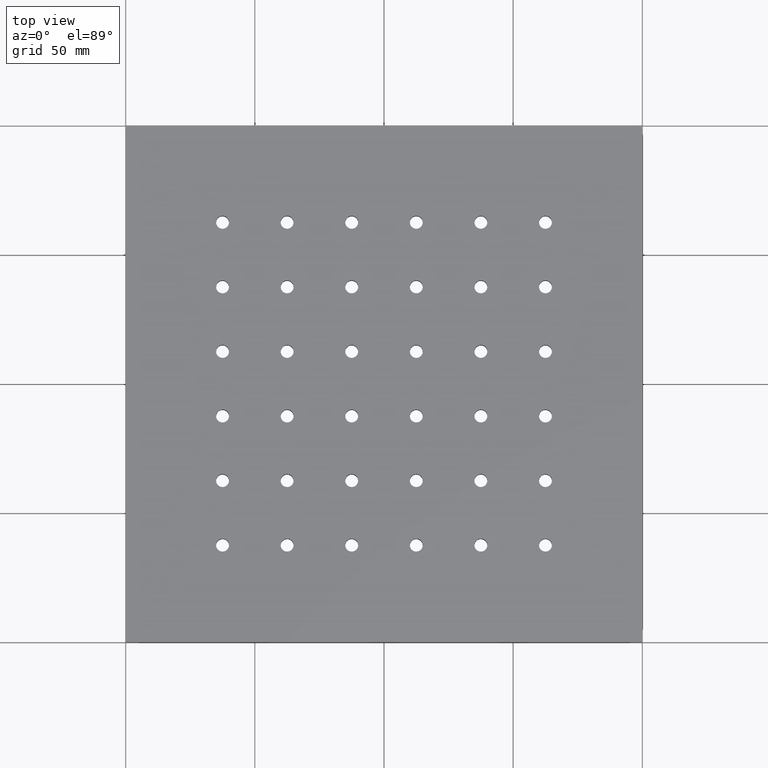
[diagram: clean part render]
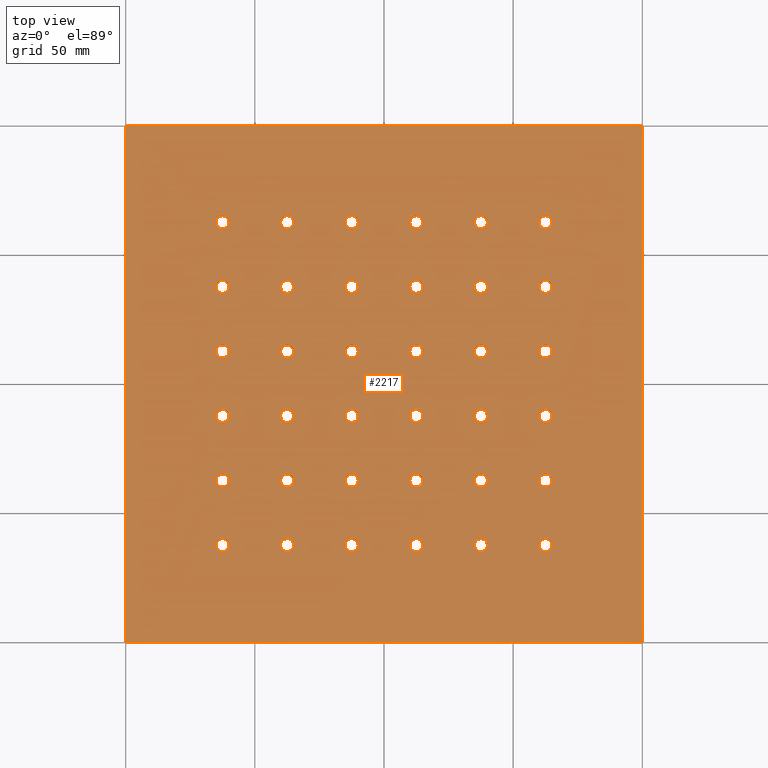
[diagram: same view with one face highlighted and labeled with its STEP entity id]
A machine part, top view. The second image highlights one B-rep face of the part: STEP entity #2217.
In plain terms, the highlighted planar face has unit normal (-0, 0, 1).
Its self-contained STEP definition (entity closure, byte-faithful):
#12 = DIRECTION ( 'NONE',  ( -0.0000000000000000000, -0.0000000000000000000, 1.000000000000000000 ) ) ;
#13 = AXIS2_PLACEMENT_3D ( 'NONE', #20, #1563, #229 ) ;
#14 = CIRCLE ( 'NONE', #1983, 2.500000000000002200 ) ;
#16 = CARTESIAN_POINT ( 'NONE',  ( -65.00000000000008500, 62.50000000000002800, 13.00000000000000000 ) ) ;
#20 = CARTESIAN_POINT ( 'NONE',  ( -12.50000000000008000, -62.49999999999997900, 13.00000000000000000 ) ) ;
#24 = EDGE_CURVE ( 'NONE', #302, #884, #1964, .T. ) ;
#36 = CARTESIAN_POINT ( 'NONE',  ( -65.00000000000008500, 12.50000000000003200, 13.00000000000000000 ) ) ;
#38 = EDGE_CURVE ( 'NONE', #500, #1203, #139, .T. ) ;
#40 = AXIS2_PLACEMENT_3D ( 'NONE', #853, #2189, #1091 ) ;
#43 = CIRCLE ( 'NONE', #1096, 2.500000000000002200 ) ;
#46 = EDGE_LOOP ( 'NONE', ( #1068, #860 ) ) ;
#50 = FACE_BOUND ( 'NONE', #2024, .T. ) ;
#52 = CARTESIAN_POINT ( 'NONE',  ( 9.999999999999925400, 62.50000000000002800, 13.00000000000000000 ) ) ;
#54 = VERTEX_POINT ( 'NONE', #292 ) ;
#57 = CIRCLE ( 'NONE', #2727, 2.500000000000002200 ) ;
#63 = CARTESIAN_POINT ( 'NONE',  ( 12.49999999999992700, -37.49999999999997900, 13.00000000000000000 ) ) ;
#66 = DIRECTION ( 'NONE',  ( 1.000000000000000000, 0.0000000000000000000, 0.0000000000000000000 ) ) ;
#70 = ORIENTED_EDGE ( 'NONE', *, *, #2866, .F. ) ;
#73 = EDGE_CURVE ( 'NONE', #342, #893, #1050, .T. ) ;
#74 = VERTEX_POINT ( 'NONE', #2214 ) ;
#77 = DIRECTION ( 'NONE',  ( -0.0000000000000000000, -0.0000000000000000000, 1.000000000000000000 ) ) ;
#80 = CIRCLE ( 'NONE', #1940, 2.500000000000002200 ) ;
#88 = DIRECTION ( 'NONE',  ( 1.000000000000000000, 0.0000000000000000000, 0.0000000000000000000 ) ) ;
#91 = EDGE_CURVE ( 'NONE', #2169, #773, #1639, .T. ) ;
#92 = AXIS2_PLACEMENT_3D ( 'NONE', #1380, #1619, #645 ) ;
#95 = CARTESIAN_POINT ( 'NONE',  ( -62.50000000000008500, -12.49999999999997700, 13.00000000000000000 ) ) ;
#96 = CARTESIAN_POINT ( 'NONE',  ( 12.49999999999992700, -12.49999999999997700, 13.00000000000000000 ) ) ;
#99 = CARTESIAN_POINT ( 'NONE',  ( 12.49999999999992700, 62.50000000000002800, 13.00000000000000000 ) ) ;
#105 = DIRECTION ( 'NONE',  ( -0.0000000000000000000, -0.0000000000000000000, 1.000000000000000000 ) ) ;
#108 = ORIENTED_EDGE ( 'NONE', *, *, #1057, .F. ) ;
#109 = AXIS2_PLACEMENT_3D ( 'NONE', #1440, #113, #1658 ) ;
#113 = DIRECTION ( 'NONE',  ( -0.0000000000000000000, -0.0000000000000000000, 1.000000000000000000 ) ) ;
#114 = FACE_BOUND ( 'NONE', #46, .T. ) ;
#115 = DIRECTION ( 'NONE',  ( -0.0000000000000000000, -0.0000000000000000000, 1.000000000000000000 ) ) ;
#119 = AXIS2_PLACEMENT_3D ( 'NONE', #227, #890, #2447 ) ;
#121 = CIRCLE ( 'NONE', #13, 2.500000000000002200 ) ;
#124 = ORIENTED_EDGE ( 'NONE', *, *, #225, .F. ) ;
#125 = EDGE_CURVE ( 'NONE', #74, #2723, #1573, .T. ) ;
#130 = DIRECTION ( 'NONE',  ( -0.0000000000000000000, -0.0000000000000000000, 1.000000000000000000 ) ) ;
#132 = EDGE_CURVE ( 'NONE', #1247, #1588, #1503, .T. ) ;
#134 = CIRCLE ( 'NONE', #2822, 2.500000000000002200 ) ;
#139 = CIRCLE ( 'NONE', #232, 2.500000000000002200 ) ;
#141 = VERTEX_POINT ( 'NONE', #1751 ) ;
#147 = DIRECTION ( 'NONE',  ( -0.0000000000000000000, -0.0000000000000000000, 1.000000000000000000 ) ) ;
#148 = DIRECTION ( 'NONE',  ( -0.0000000000000000000, -0.0000000000000000000, 1.000000000000000000 ) ) ;
#149 = CARTESIAN_POINT ( 'NONE',  ( -35.00000000000007800, -37.49999999999997900, 13.00000000000000000 ) ) ;
#154 = VERTEX_POINT ( 'NONE', #2410 ) ;
#156 = CIRCLE ( 'NONE', #1105, 2.500000000000002200 ) ;
#160 = CARTESIAN_POINT ( 'NONE',  ( 62.49999999999991500, 12.50000000000003200, 13.00000000000000000 ) ) ;
#165 = VERTEX_POINT ( 'NONE', #411 ) ;
#169 = CIRCLE ( 'NONE', #2622, 2.500000000000002200 ) ;
#174 = VERTEX_POINT ( 'NONE', #1724 ) ;
#183 = EDGE_CURVE ( 'NONE', #2425, #2183, #2536, .T. ) ;
#184 = AXIS2_PLACEMENT_3D ( 'NONE', #192, #1080, #1744 ) ;
#186 = CARTESIAN_POINT ( 'NONE',  ( -12.50000000000008000, -12.49999999999997700, 13.00000000000000000 ) ) ;
#190 = DIRECTION ( 'NONE',  ( -0.0000000000000000000, -0.0000000000000000000, 1.000000000000000000 ) ) ;
#191 = ORIENTED_EDGE ( 'NONE', *, *, #2428, .F. ) ;
#192 = CARTESIAN_POINT ( 'NONE',  ( 62.49999999999991500, -12.49999999999997700, 13.00000000000000000 ) ) ;
#193 = DIRECTION ( 'NONE',  ( 1.000000000000000000, 0.0000000000000000000, 0.0000000000000000000 ) ) ;
#199 = EDGE_CURVE ( 'NONE', #2723, #74, #1937, .T. ) ;
#200 = DIRECTION ( 'NONE',  ( 1.000000000000000000, 0.0000000000000000000, 0.0000000000000000000 ) ) ;
#205 = CARTESIAN_POINT ( 'NONE',  ( -12.50000000000008000, 12.50000000000003200, 13.00000000000000000 ) ) ;
#210 = CARTESIAN_POINT ( 'NONE',  ( -100.0000000000000000, 99.99999999999997200, 13.00000000000000000 ) ) ;
#213 = CIRCLE ( 'NONE', #2547, 2.500000000000002200 ) ;
#217 = DIRECTION ( 'NONE',  ( 1.000000000000000000, 0.0000000000000000000, 0.0000000000000000000 ) ) ;
#218 = EDGE_CURVE ( 'NONE', #2625, #2179, #2473, .T. ) ;
#220 = EDGE_LOOP ( 'NONE', ( #191, #2212 ) ) ;
#222 = CARTESIAN_POINT ( 'NONE',  ( 37.49999999999992900, 37.50000000000003600, 13.00000000000000000 ) ) ;
#225 = EDGE_CURVE ( 'NONE', #1042, #667, #1368, .T. ) ;
#227 = CARTESIAN_POINT ( 'NONE',  ( 0.0000000000000000000, 0.0000000000000000000, 13.00000000000000000 ) ) ;
#229 = DIRECTION ( 'NONE',  ( 1.000000000000000000, 0.0000000000000000000, 0.0000000000000000000 ) ) ;
#230 = VERTEX_POINT ( 'NONE', #2634 ) ;
#231 = EDGE_CURVE ( 'NONE', #1203, #500, #1435, .T. ) ;
#232 = AXIS2_PLACEMENT_3D ( 'NONE', #957, #2292, #738 ) ;
#233 = DIRECTION ( 'NONE',  ( -2.775557561562891400E-016, 1.000000000000000000, -0.0000000000000000000 ) ) ;
#235 = EDGE_LOOP ( 'NONE', ( #294, #2194 ) ) ;
#243 = VERTEX_POINT ( 'NONE', #654 ) ;
#248 = VECTOR ( 'NONE', #652, 1000.000000000000000 ) ;
#266 = DIRECTION ( 'NONE',  ( -0.0000000000000000000, -0.0000000000000000000, 1.000000000000000000 ) ) ;
#269 = EDGE_CURVE ( 'NONE', #2179, #2625, #1160, .T. ) ;
#270 = AXIS2_PLACEMENT_3D ( 'NONE', #205, #1311, #2859 ) ;
#271 = DIRECTION ( 'NONE',  ( -0.0000000000000000000, -0.0000000000000000000, 1.000000000000000000 ) ) ;
#278 = DIRECTION ( 'NONE',  ( 1.000000000000000000, 0.0000000000000000000, 0.0000000000000000000 ) ) ;
#280 = FACE_BOUND ( 'NONE', #1955, .T. ) ;
#281 = EDGE_CURVE ( 'NONE', #2461, #2593, #1741, .T. ) ;
#283 = CARTESIAN_POINT ( 'NONE',  ( 9.999999999999925400, -62.49999999999997900, 13.00000000000000000 ) ) ;
#286 = ORIENTED_EDGE ( 'NONE', *, *, #1240, .F. ) ;
#292 = CARTESIAN_POINT ( 'NONE',  ( -60.00000000000007800, 37.50000000000003600, 13.00000000000000000 ) ) ;
#294 = ORIENTED_EDGE ( 'NONE', *, *, #815, .F. ) ;
#295 = EDGE_CURVE ( 'NONE', #313, #2837, #2190, .T. ) ;
#296 = AXIS2_PLACEMENT_3D ( 'NONE', #2007, #684, #2235 ) ;
#300 = AXIS2_PLACEMENT_3D ( 'NONE', #1112, #12, #1335 ) ;
#302 = VERTEX_POINT ( 'NONE', #52 ) ;
#309 = DIRECTION ( 'NONE',  ( 1.000000000000000000, 0.0000000000000000000, 0.0000000000000000000 ) ) ;
#311 = DIRECTION ( 'NONE',  ( -0.0000000000000000000, -0.0000000000000000000, 1.000000000000000000 ) ) ;
#312 = ORIENTED_EDGE ( 'NONE', *, *, #2821, .F. ) ;
#313 = VERTEX_POINT ( 'NONE', #363 ) ;
#317 = DIRECTION ( 'NONE',  ( 1.000000000000000000, 0.0000000000000000000, 0.0000000000000000000 ) ) ;
#333 = CARTESIAN_POINT ( 'NONE',  ( -37.50000000000008500, -62.49999999999997900, 13.00000000000000000 ) ) ;
#341 = CARTESIAN_POINT ( 'NONE',  ( -65.00000000000008500, 37.50000000000003600, 13.00000000000000000 ) ) ;
#342 = VERTEX_POINT ( 'NONE', #1906 ) ;
#344 = CIRCLE ( 'NONE', #397, 2.500000000000002200 ) ;
#347 = FACE_BOUND ( 'NONE', #399, .T. ) ;
#349 = CARTESIAN_POINT ( 'NONE',  ( -10.00000000000007800, 62.50000000000002800, 13.00000000000000000 ) ) ;
#356 = EDGE_LOOP ( 'NONE', ( #447, #312 ) ) ;
#363 = CARTESIAN_POINT ( 'NONE',  ( 14.99999999999993100, 12.50000000000003200, 13.00000000000000000 ) ) ;
#367 = ORIENTED_EDGE ( 'NONE', *, *, #2109, .F. ) ;
#369 = DIRECTION ( 'NONE',  ( 1.000000000000000000, 0.0000000000000000000, 0.0000000000000000000 ) ) ;
#370 = AXIS2_PLACEMENT_3D ( 'NONE', #425, #1387, #2255 ) ;
#372 = CIRCLE ( 'NONE', #2486, 2.500000000000002200 ) ;
#378 = VERTEX_POINT ( 'NONE', #2114 ) ;
#382 = VECTOR ( 'NONE', #2435, 1000.000000000000000 ) ;
#383 = CIRCLE ( 'NONE', #1511, 2.500000000000002200 ) ;
#389 = EDGE_LOOP ( 'NONE', ( #108, #2655 ) ) ;
#390 = CARTESIAN_POINT ( 'NONE',  ( 39.99999999999992900, 12.50000000000003200, 13.00000000000000000 ) ) ;
#395 = CARTESIAN_POINT ( 'NONE',  ( 37.49999999999992200, -62.49999999999997900, 13.00000000000000000 ) ) ;
#397 = AXIS2_PLACEMENT_3D ( 'NONE', #1476, #147, #1692 ) ;
#398 = EDGE_CURVE ( 'NONE', #787, #1891, #1399, .T. ) ;
#399 = EDGE_LOOP ( 'NONE', ( #124, #367 ) ) ;
#405 = CIRCLE ( 'NONE', #2003, 2.500000000000002200 ) ;
#408 = CIRCLE ( 'NONE', #2272, 2.500000000000002200 ) ;
#411 = CARTESIAN_POINT ( 'NONE',  ( -35.00000000000007800, -62.49999999999997900, 13.00000000000000000 ) ) ;
#412 = CARTESIAN_POINT ( 'NONE',  ( 62.49999999999991500, -62.49999999999997900, 13.00000000000000000 ) ) ;
#415 = CARTESIAN_POINT ( 'NONE',  ( -62.50000000000008500, 12.50000000000003200, 13.00000000000000000 ) ) ;
#416 = CIRCLE ( 'NONE', #1152, 2.500000000000002200 ) ;
#418 = FACE_BOUND ( 'NONE', #492, .T. ) ;
#420 = EDGE_CURVE ( 'NONE', #2500, #1770, #2565, .T. ) ;
#423 = CIRCLE ( 'NONE', #2306, 2.500000000000002200 ) ;
#425 = CARTESIAN_POINT ( 'NONE',  ( -37.50000000000008500, 62.50000000000002800, 13.00000000000000000 ) ) ;
#426 = VERTEX_POINT ( 'NONE', #2134 ) ;
#431 = EDGE_CURVE ( 'NONE', #1079, #2541, #1535, .T. ) ;
#436 = EDGE_CURVE ( 'NONE', #2740, #2033, #727, .T. ) ;
#438 = CARTESIAN_POINT ( 'NONE',  ( -37.50000000000008500, -12.49999999999997700, 13.00000000000000000 ) ) ;
#440 = EDGE_CURVE ( 'NONE', #809, #2151, #213, .T. ) ;
#442 = DIRECTION ( 'NONE',  ( 1.000000000000000000, 0.0000000000000000000, 0.0000000000000000000 ) ) ;
#445 = CARTESIAN_POINT ( 'NONE',  ( -12.50000000000008000, 37.50000000000003600, 13.00000000000000000 ) ) ;
#447 = ORIENTED_EDGE ( 'NONE', *, *, #858, .F. ) ;
#450 = CIRCLE ( 'NONE', #1591, 2.500000000000002200 ) ;
#452 = EDGE_CURVE ( 'NONE', #2529, #912, #1837, .T. ) ;
#456 = CARTESIAN_POINT ( 'NONE',  ( 14.99999999999993100, 37.50000000000003600, 13.00000000000000000 ) ) ;
#463 = CIRCLE ( 'NONE', #2254, 2.500000000000002200 ) ;
#465 = DIRECTION ( 'NONE',  ( -0.0000000000000000000, -0.0000000000000000000, 1.000000000000000000 ) ) ;
#471 = ORIENTED_EDGE ( 'NONE', *, *, #2758, .F. ) ;
#480 = CARTESIAN_POINT ( 'NONE',  ( -40.00000000000008500, 62.50000000000002800, 13.00000000000000000 ) ) ;
#483 = AXIS2_PLACEMENT_3D ( 'NONE', #2143, #836, #217 ) ;
#484 = ORIENTED_EDGE ( 'NONE', *, *, #440, .F. ) ;
#491 = EDGE_CURVE ( 'NONE', #1691, #2710, #592, .T. ) ;
#492 = EDGE_LOOP ( 'NONE', ( #2369, #618 ) ) ;
#496 = FACE_BOUND ( 'NONE', #1575, .T. ) ;
#500 = VERTEX_POINT ( 'NONE', #1086 ) ;
#501 = VERTEX_POINT ( 'NONE', #2181 ) ;
#509 = ORIENTED_EDGE ( 'NONE', *, *, #2751, .F. ) ;
#512 = EDGE_CURVE ( 'NONE', #893, #342, #14, .T. ) ;
#525 = CARTESIAN_POINT ( 'NONE',  ( 34.99999999999992900, 37.50000000000003600, 13.00000000000000000 ) ) ;
#536 = CARTESIAN_POINT ( 'NONE',  ( 9.999999999999925400, -37.49999999999997900, 13.00000000000000000 ) ) ;
#537 = ORIENTED_EDGE ( 'NONE', *, *, #2378, .F. ) ;
#540 = EDGE_CURVE ( 'NONE', #1210, #1351, #1047, .T. ) ;
#541 = AXIS2_PLACEMENT_3D ( 'NONE', #2165, #837, #2392 ) ;
#547 = AXIS2_PLACEMENT_3D ( 'NONE', #1008, #2550, #1233 ) ;
#551 = EDGE_LOOP ( 'NONE', ( #1009, #980 ) ) ;
#553 = ORIENTED_EDGE ( 'NONE', *, *, #609, .F. ) ;
#554 = EDGE_CURVE ( 'NONE', #243, #1294, #2148, .T. ) ;
#560 = FACE_BOUND ( 'NONE', #1829, .T. ) ;
#561 = DIRECTION ( 'NONE',  ( 1.000000000000000000, 0.0000000000000000000, 0.0000000000000000000 ) ) ;
#572 = CARTESIAN_POINT ( 'NONE',  ( 59.99999999999991500, 37.50000000000003600, 13.00000000000000000 ) ) ;
#574 = VERTEX_POINT ( 'NONE', #2649 ) ;
#582 = EDGE_CURVE ( 'NONE', #1820, #2833, #904, .T. ) ;
#587 = ORIENTED_EDGE ( 'NONE', *, *, #218, .F. ) ;
#592 = CIRCLE ( 'NONE', #2290, 2.500000000000002200 ) ;
#594 = DIRECTION ( 'NONE',  ( 1.000000000000000000, 0.0000000000000000000, 0.0000000000000000000 ) ) ;
#605 = CARTESIAN_POINT ( 'NONE',  ( 37.49999999999992900, -37.49999999999997900, 13.00000000000000000 ) ) ;
#608 = DIRECTION ( 'NONE',  ( 1.000000000000000000, 0.0000000000000000000, 0.0000000000000000000 ) ) ;
#609 = EDGE_CURVE ( 'NONE', #154, #1184, #2601, .T. ) ;
#613 = CARTESIAN_POINT ( 'NONE',  ( -40.00000000000008500, 12.50000000000003200, 13.00000000000000000 ) ) ;
#617 = CARTESIAN_POINT ( 'NONE',  ( -62.50000000000008500, -12.49999999999997700, 13.00000000000000000 ) ) ;
#618 = ORIENTED_EDGE ( 'NONE', *, *, #1712, .F. ) ;
#619 = DIRECTION ( 'NONE',  ( -0.0000000000000000000, -0.0000000000000000000, 1.000000000000000000 ) ) ;
#620 = EDGE_CURVE ( 'NONE', #1813, #2206, #2005, .T. ) ;
#621 = AXIS2_PLACEMENT_3D ( 'NONE', #1101, #2242, #1600 ) ;
#625 = FACE_BOUND ( 'NONE', #1107, .T. ) ;
#632 = EDGE_CURVE ( 'NONE', #2837, #313, #1432, .T. ) ;
#635 = CIRCLE ( 'NONE', #296, 2.500000000000002200 ) ;
#637 = ORIENTED_EDGE ( 'NONE', *, *, #269, .F. ) ;
#638 = DIRECTION ( 'NONE',  ( 1.000000000000000000, 0.0000000000000000000, 0.0000000000000000000 ) ) ;
#640 = DIRECTION ( 'NONE',  ( -0.0000000000000000000, -0.0000000000000000000, 1.000000000000000000 ) ) ;
#645 = DIRECTION ( 'NONE',  ( 1.000000000000000000, 0.0000000000000000000, 0.0000000000000000000 ) ) ;
#649 = AXIS2_PLACEMENT_3D ( 'NONE', #160, #1707, #369 ) ;
#652 = DIRECTION ( 'NONE',  ( -1.000000000000000000, -0.0000000000000000000, -0.0000000000000000000 ) ) ;
#654 = CARTESIAN_POINT ( 'NONE',  ( -100.0000000000000000, 99.99999999999997200, 13.00000000000000000 ) ) ;
#662 = EDGE_CURVE ( 'NONE', #1978, #1018, #1934, .T. ) ;
#667 = VERTEX_POINT ( 'NONE', #283 ) ;
#669 = DIRECTION ( 'NONE',  ( 1.000000000000000000, 0.0000000000000000000, 0.0000000000000000000 ) ) ;
#670 = ORIENTED_EDGE ( 'NONE', *, *, #24, .F. ) ;
#673 = ORIENTED_EDGE ( 'NONE', *, *, #903, .F. ) ;
#684 = DIRECTION ( 'NONE',  ( -0.0000000000000000000, -0.0000000000000000000, 1.000000000000000000 ) ) ;
#702 = DIRECTION ( 'NONE',  ( -0.0000000000000000000, -0.0000000000000000000, 1.000000000000000000 ) ) ;
#707 = CARTESIAN_POINT ( 'NONE',  ( 34.99999999999992200, -62.49999999999997900, 13.00000000000000000 ) ) ;
#711 = DIRECTION ( 'NONE',  ( -0.0000000000000000000, -0.0000000000000000000, 1.000000000000000000 ) ) ;
#714 = VERTEX_POINT ( 'NONE', #1202 ) ;
#716 = CARTESIAN_POINT ( 'NONE',  ( -62.50000000000008500, 62.50000000000002800, 13.00000000000000000 ) ) ;
#717 = ORIENTED_EDGE ( 'NONE', *, *, #281, .F. ) ;
#720 = DIRECTION ( 'NONE',  ( -0.0000000000000000000, -0.0000000000000000000, 1.000000000000000000 ) ) ;
#721 = ORIENTED_EDGE ( 'NONE', *, *, #491, .F. ) ;
#727 = CIRCLE ( 'NONE', #2706, 2.500000000000002200 ) ;
#730 = EDGE_CURVE ( 'NONE', #501, #880, #2324, .T. ) ;
#736 = ORIENTED_EDGE ( 'NONE', *, *, #1087, .F. ) ;
#737 = CIRCLE ( 'NONE', #649, 2.500000000000002200 ) ;
#738 = DIRECTION ( 'NONE',  ( 1.000000000000000000, 0.0000000000000000000, 0.0000000000000000000 ) ) ;
#743 = AXIS2_PLACEMENT_3D ( 'NONE', #1608, #271, #1818 ) ;
#744 = EDGE_LOOP ( 'NONE', ( #1055, #1077 ) ) ;
#746 = CARTESIAN_POINT ( 'NONE',  ( -60.00000000000007800, 12.50000000000003200, 13.00000000000000000 ) ) ;
#749 = CARTESIAN_POINT ( 'NONE',  ( -12.50000000000008000, 12.50000000000003200, 13.00000000000000000 ) ) ;
#751 = EDGE_LOOP ( 'NONE', ( #509, #1147 ) ) ;
#752 = CARTESIAN_POINT ( 'NONE',  ( -10.00000000000007800, 12.50000000000003200, 13.00000000000000000 ) ) ;
#763 = FACE_BOUND ( 'NONE', #2590, .T. ) ;
#764 = CARTESIAN_POINT ( 'NONE',  ( -60.00000000000007800, -37.49999999999997900, 13.00000000000000000 ) ) ;
#767 = AXIS2_PLACEMENT_3D ( 'NONE', #1004, #2548, #1232 ) ;
#769 = EDGE_CURVE ( 'NONE', #378, #574, #1083, .T. ) ;
#773 = VERTEX_POINT ( 'NONE', #1457 ) ;
#783 = ORIENTED_EDGE ( 'NONE', *, *, #913, .F. ) ;
#786 = CIRCLE ( 'NONE', #2070, 2.500000000000002200 ) ;
#787 = VERTEX_POINT ( 'NONE', #2779 ) ;
#794 = FACE_BOUND ( 'NONE', #551, .T. ) ;
#799 = CARTESIAN_POINT ( 'NONE',  ( 62.49999999999991500, 37.50000000000003600, 13.00000000000000000 ) ) ;
#804 = ORIENTED_EDGE ( 'NONE', *, *, #769, .F. ) ;
#806 = DIRECTION ( 'NONE',  ( -0.0000000000000000000, -0.0000000000000000000, 1.000000000000000000 ) ) ;
#807 = CARTESIAN_POINT ( 'NONE',  ( 37.49999999999992900, -12.49999999999997700, 13.00000000000000000 ) ) ;
#808 = EDGE_CURVE ( 'NONE', #1945, #1128, #416, .T. ) ;
#809 = VERTEX_POINT ( 'NONE', #1683 ) ;
#815 = EDGE_CURVE ( 'NONE', #165, #141, #344, .T. ) ;
#820 = ORIENTED_EDGE ( 'NONE', *, *, #452, .F. ) ;
#821 = DIRECTION ( 'NONE',  ( 1.000000000000000000, 0.0000000000000000000, 0.0000000000000000000 ) ) ;
#831 = CARTESIAN_POINT ( 'NONE',  ( 62.49999999999991500, -37.49999999999997900, 13.00000000000000000 ) ) ;
#836 = DIRECTION ( 'NONE',  ( -0.0000000000000000000, -0.0000000000000000000, 1.000000000000000000 ) ) ;
#837 = DIRECTION ( 'NONE',  ( -0.0000000000000000000, -0.0000000000000000000, 1.000000000000000000 ) ) ;
#839 = DIRECTION ( 'NONE',  ( 1.000000000000000000, 0.0000000000000000000, 0.0000000000000000000 ) ) ;
#844 = EDGE_CURVE ( 'NONE', #1588, #1247, #1462, .T. ) ;
#850 = ORIENTED_EDGE ( 'NONE', *, *, #1135, .F. ) ;
#853 = CARTESIAN_POINT ( 'NONE',  ( 12.49999999999992700, -62.49999999999997900, 13.00000000000000000 ) ) ;
#858 = EDGE_CURVE ( 'NONE', #54, #1928, #450, .T. ) ;
#860 = ORIENTED_EDGE ( 'NONE', *, *, #431, .F. ) ;
#863 = EDGE_LOOP ( 'NONE', ( #916, #70 ) ) ;
#864 = FACE_BOUND ( 'NONE', #2580, .T. ) ;
#867 = CARTESIAN_POINT ( 'NONE',  ( -37.50000000000008500, 12.50000000000003200, 13.00000000000000000 ) ) ;
#869 = ORIENTED_EDGE ( 'NONE', *, *, #2800, .F. ) ;
#880 = VERTEX_POINT ( 'NONE', #1927 ) ;
#884 = VERTEX_POINT ( 'NONE', #1679 ) ;
#886 = AXIS2_PLACEMENT_3D ( 'NONE', #2257, #928, #2485 ) ;
#890 = DIRECTION ( 'NONE',  ( -0.0000000000000000000, 0.0000000000000000000, 1.000000000000000000 ) ) ;
#893 = VERTEX_POINT ( 'NONE', #2060 ) ;
#897 = AXIS2_PLACEMENT_3D ( 'NONE', #716, #2269, #943 ) ;
#903 = EDGE_CURVE ( 'NONE', #2710, #1691, #1996, .T. ) ;
#904 = CIRCLE ( 'NONE', #300, 2.500000000000002200 ) ;
#912 = VERTEX_POINT ( 'NONE', #752 ) ;
#913 = EDGE_CURVE ( 'NONE', #1018, #1978, #372, .T. ) ;
#915 = CARTESIAN_POINT ( 'NONE',  ( 37.49999999999992900, 12.50000000000003200, 13.00000000000000000 ) ) ;
#916 = ORIENTED_EDGE ( 'NONE', *, *, #420, .F. ) ;
#917 = AXIS2_PLACEMENT_3D ( 'NONE', #333, #1884, #561 ) ;
#918 = CARTESIAN_POINT ( 'NONE',  ( 62.49999999999991500, -37.49999999999997900, 13.00000000000000000 ) ) ;
#921 = AXIS2_PLACEMENT_3D ( 'NONE', #831, #619, #608 ) ;
#922 = CARTESIAN_POINT ( 'NONE',  ( -37.50000000000008500, 37.50000000000003600, 13.00000000000000000 ) ) ;
#926 = CARTESIAN_POINT ( 'NONE',  ( 12.49999999999992700, 62.50000000000002800, 13.00000000000000000 ) ) ;
#927 = DIRECTION ( 'NONE',  ( -0.0000000000000000000, -0.0000000000000000000, 1.000000000000000000 ) ) ;
#928 = DIRECTION ( 'NONE',  ( -0.0000000000000000000, -0.0000000000000000000, 1.000000000000000000 ) ) ;
#931 = CIRCLE ( 'NONE', #1822, 2.500000000000002200 ) ;
#935 = DIRECTION ( 'NONE',  ( 1.000000000000000000, 0.0000000000000000000, 0.0000000000000000000 ) ) ;
#939 = CARTESIAN_POINT ( 'NONE',  ( -62.50000000000008500, 62.50000000000002800, 13.00000000000000000 ) ) ;
#941 = FACE_BOUND ( 'NONE', #1869, .T. ) ;
#943 = DIRECTION ( 'NONE',  ( 1.000000000000000000, 0.0000000000000000000, 0.0000000000000000000 ) ) ;
#946 = ORIENTED_EDGE ( 'NONE', *, *, #2152, .T. ) ;
#957 = CARTESIAN_POINT ( 'NONE',  ( -12.50000000000008000, -37.49999999999997900, 13.00000000000000000 ) ) ;
#964 = VERTEX_POINT ( 'NONE', #1878 ) ;
#977 = AXIS2_PLACEMENT_3D ( 'NONE', #1373, #1513, #935 ) ;
#978 = DIRECTION ( 'NONE',  ( -0.0000000000000000000, -0.0000000000000000000, 1.000000000000000000 ) ) ;
#980 = ORIENTED_EDGE ( 'NONE', *, *, #1157, .F. ) ;
#981 = DIRECTION ( 'NONE',  ( 1.000000000000000000, 0.0000000000000000000, 0.0000000000000000000 ) ) ;
#1004 = CARTESIAN_POINT ( 'NONE',  ( -37.50000000000008500, 12.50000000000003200, 13.00000000000000000 ) ) ;
#1008 = CARTESIAN_POINT ( 'NONE',  ( 37.49999999999992200, 62.50000000000002800, 13.00000000000000000 ) ) ;
#1009 = ORIENTED_EDGE ( 'NONE', *, *, #91, .F. ) ;
#1010 = FACE_BOUND ( 'NONE', #356, .T. ) ;
#1017 = DIRECTION ( 'NONE',  ( -0.0000000000000000000, -0.0000000000000000000, 1.000000000000000000 ) ) ;
#1018 = VERTEX_POINT ( 'NONE', #349 ) ;
#1025 = DIRECTION ( 'NONE',  ( 1.000000000000000000, 0.0000000000000000000, 0.0000000000000000000 ) ) ;
#1027 = CARTESIAN_POINT ( 'NONE',  ( -15.00000000000008300, 12.50000000000003200, 13.00000000000000000 ) ) ;
#1033 = DIRECTION ( 'NONE',  ( -0.0000000000000000000, -0.0000000000000000000, 1.000000000000000000 ) ) ;
#1041 = ORIENTED_EDGE ( 'NONE', *, *, #582, .F. ) ;
#1042 = VERTEX_POINT ( 'NONE', #2123 ) ;
#1047 = LINE ( 'NONE', #1341, #1569 ) ;
#1050 = CIRCLE ( 'NONE', #92, 2.500000000000002200 ) ;
#1051 = CARTESIAN_POINT ( 'NONE',  ( 64.99999999999991500, -37.49999999999997900, 13.00000000000000000 ) ) ;
#1053 = DIRECTION ( 'NONE',  ( -0.0000000000000000000, -0.0000000000000000000, 1.000000000000000000 ) ) ;
#1054 = AXIS2_PLACEMENT_3D ( 'NONE', #2717, #1395, #66 ) ;
#1055 = ORIENTED_EDGE ( 'NONE', *, *, #2465, .F. ) ;
#1057 = EDGE_CURVE ( 'NONE', #2561, #1762, #43, .T. ) ;
#1058 = CARTESIAN_POINT ( 'NONE',  ( -10.00000000000007800, 37.50000000000003600, 13.00000000000000000 ) ) ;
#1062 = CARTESIAN_POINT ( 'NONE',  ( -37.50000000000008500, 37.50000000000003600, 13.00000000000000000 ) ) ;
#1064 = ORIENTED_EDGE ( 'NONE', *, *, #1384, .F. ) ;
#1065 = CARTESIAN_POINT ( 'NONE',  ( -62.50000000000008500, -37.49999999999997900, 13.00000000000000000 ) ) ;
#1068 = ORIENTED_EDGE ( 'NONE', *, *, #1810, .F. ) ;
#1069 = CARTESIAN_POINT ( 'NONE',  ( 34.99999999999992900, -37.49999999999997900, 13.00000000000000000 ) ) ;
#1077 = ORIENTED_EDGE ( 'NONE', *, *, #808, .F. ) ;
#1079 = VERTEX_POINT ( 'NONE', #2795 ) ;
#1080 = DIRECTION ( 'NONE',  ( -0.0000000000000000000, -0.0000000000000000000, 1.000000000000000000 ) ) ;
#1082 = DIRECTION ( 'NONE',  ( -0.0000000000000000000, -0.0000000000000000000, 1.000000000000000000 ) ) ;
#1083 = CIRCLE ( 'NONE', #547, 2.500000000000002200 ) ;
#1084 = ORIENTED_EDGE ( 'NONE', *, *, #1542, .F. ) ;
#1085 = FACE_BOUND ( 'NONE', #389, .T. ) ;
#1086 = CARTESIAN_POINT ( 'NONE',  ( -15.00000000000008300, -37.49999999999997900, 13.00000000000000000 ) ) ;
#1087 = EDGE_CURVE ( 'NONE', #2183, #2425, #2319, .T. ) ;
#1091 = DIRECTION ( 'NONE',  ( 1.000000000000000000, 0.0000000000000000000, 0.0000000000000000000 ) ) ;
#1095 = ORIENTED_EDGE ( 'NONE', *, *, #73, .F. ) ;
#1096 = AXIS2_PLACEMENT_3D ( 'NONE', #807, #2367, #2582 ) ;
#1099 = EDGE_CURVE ( 'NONE', #1762, #2561, #1730, .T. ) ;
#1101 = CARTESIAN_POINT ( 'NONE',  ( -12.50000000000008000, -37.49999999999997900, 13.00000000000000000 ) ) ;
#1102 = DIRECTION ( 'NONE',  ( 1.000000000000000000, 0.0000000000000000000, 0.0000000000000000000 ) ) ;
#1105 = AXIS2_PLACEMENT_3D ( 'NONE', #1062, #2605, #1276 ) ;
#1107 = EDGE_LOOP ( 'NONE', ( #1494, #2616 ) ) ;
#1108 = CARTESIAN_POINT ( 'NONE',  ( 64.99999999999991500, 62.50000000000002800, 13.00000000000000000 ) ) ;
#1112 = CARTESIAN_POINT ( 'NONE',  ( -62.50000000000008500, 12.50000000000003200, 13.00000000000000000 ) ) ;
#1118 = ORIENTED_EDGE ( 'NONE', *, *, #540, .T. ) ;
#1126 = EDGE_LOOP ( 'NONE', ( #2113, #820 ) ) ;
#1128 = VERTEX_POINT ( 'NONE', #2607 ) ;
#1135 = EDGE_CURVE ( 'NONE', #426, #964, #2177, .T. ) ;
#1139 = CARTESIAN_POINT ( 'NONE',  ( 100.0000000000000600, -100.0000000000000300, 13.00000000000000000 ) ) ;
#1140 = CARTESIAN_POINT ( 'NONE',  ( -62.50000000000008500, 37.50000000000003600, 13.00000000000000000 ) ) ;
#1141 = VERTEX_POINT ( 'NONE', #1069 ) ;
#1142 = DIRECTION ( 'NONE',  ( -0.0000000000000000000, -0.0000000000000000000, 1.000000000000000000 ) ) ;
#1146 = DIRECTION ( 'NONE',  ( 1.000000000000000000, 0.0000000000000000000, 0.0000000000000000000 ) ) ;
#1147 = ORIENTED_EDGE ( 'NONE', *, *, #436, .F. ) ;
#1149 = EDGE_LOOP ( 'NONE', ( #2528, #670 ) ) ;
#1152 = AXIS2_PLACEMENT_3D ( 'NONE', #799, #2348, #1025 ) ;
#1154 = EDGE_LOOP ( 'NONE', ( #1118, #946, #1998, #2274 ) ) ;
#1157 = EDGE_CURVE ( 'NONE', #773, #2169, #931, .T. ) ;
#1159 = FACE_BOUND ( 'NONE', #2100, .T. ) ;
#1160 = CIRCLE ( 'NONE', #483, 2.500000000000002200 ) ;
#1161 = DIRECTION ( 'NONE',  ( 1.000000000000000000, 0.0000000000000000000, 0.0000000000000000000 ) ) ;
#1164 = AXIS2_PLACEMENT_3D ( 'NONE', #95, #1644, #309 ) ;
#1170 = DIRECTION ( 'NONE',  ( 1.000000000000000000, 0.0000000000000000000, 0.0000000000000000000 ) ) ;
#1171 = EDGE_CURVE ( 'NONE', #2833, #1820, #408, .T. ) ;
#1177 = ORIENTED_EDGE ( 'NONE', *, *, #199, .F. ) ;
#1178 = ORIENTED_EDGE ( 'NONE', *, *, #844, .F. ) ;
#1184 = VERTEX_POINT ( 'NONE', #707 ) ;
#1196 = EDGE_CURVE ( 'NONE', #2593, #2461, #2630, .T. ) ;
#1202 = CARTESIAN_POINT ( 'NONE',  ( 9.999999999999925400, 37.50000000000003600, 13.00000000000000000 ) ) ;
#1203 = VERTEX_POINT ( 'NONE', #1773 ) ;
#1210 = VERTEX_POINT ( 'NONE', #1139 ) ;
#1216 = EDGE_LOOP ( 'NONE', ( #1590, #1800 ) ) ;
#1217 = AXIS2_PLACEMENT_3D ( 'NONE', #2338, #1017, #2558 ) ;
#1219 = FACE_BOUND ( 'NONE', #1941, .T. ) ;
#1222 = CARTESIAN_POINT ( 'NONE',  ( -15.00000000000008300, -62.49999999999997900, 13.00000000000000000 ) ) ;
#1232 = DIRECTION ( 'NONE',  ( 1.000000000000000000, 0.0000000000000000000, 0.0000000000000000000 ) ) ;
#1233 = DIRECTION ( 'NONE',  ( 1.000000000000000000, 0.0000000000000000000, 0.0000000000000000000 ) ) ;
#1240 = EDGE_CURVE ( 'NONE', #2569, #2842, #786, .T. ) ;
#1247 = VERTEX_POINT ( 'NONE', #2349 ) ;
#1260 = CARTESIAN_POINT ( 'NONE',  ( -99.99999999999997200, -100.0000000000000300, 13.00000000000000000 ) ) ;
#1263 = DIRECTION ( 'NONE',  ( 1.000000000000000000, 0.0000000000000000000, 0.0000000000000000000 ) ) ;
#1264 = EDGE_CURVE ( 'NONE', #2047, #230, #134, .T. ) ;
#1268 = VERTEX_POINT ( 'NONE', #2004 ) ;
#1276 = DIRECTION ( 'NONE',  ( 1.000000000000000000, 0.0000000000000000000, 0.0000000000000000000 ) ) ;
#1284 = CARTESIAN_POINT ( 'NONE',  ( 12.49999999999992700, -37.49999999999997900, 13.00000000000000000 ) ) ;
#1288 = DIRECTION ( 'NONE',  ( 1.000000000000000000, 0.0000000000000000000, 0.0000000000000000000 ) ) ;
#1294 = VERTEX_POINT ( 'NONE', #1260 ) ;
#1302 = DIRECTION ( 'NONE',  ( 1.000000000000000000, 0.0000000000000000000, 0.0000000000000000000 ) ) ;
#1304 = AXIS2_PLACEMENT_3D ( 'NONE', #749, #2304, #981 ) ;
#1305 = CARTESIAN_POINT ( 'NONE',  ( 59.99999999999991500, 12.50000000000003200, 13.00000000000000000 ) ) ;
#1311 = DIRECTION ( 'NONE',  ( -0.0000000000000000000, -0.0000000000000000000, 1.000000000000000000 ) ) ;
#1315 = EDGE_LOOP ( 'NONE', ( #1487, #1359 ) ) ;
#1327 = CARTESIAN_POINT ( 'NONE',  ( 59.99999999999991500, -12.49999999999997700, 13.00000000000000000 ) ) ;
#1335 = DIRECTION ( 'NONE',  ( 1.000000000000000000, 0.0000000000000000000, 0.0000000000000000000 ) ) ;
#1339 = DIRECTION ( 'NONE',  ( 1.000000000000000000, 0.0000000000000000000, 0.0000000000000000000 ) ) ;
#1341 = CARTESIAN_POINT ( 'NONE',  ( 100.0000000000000000, 99.99999999999997200, 13.00000000000000000 ) ) ;
#1343 = EDGE_CURVE ( 'NONE', #714, #2213, #1690, .T. ) ;
#1345 = ORIENTED_EDGE ( 'NONE', *, *, #1720, .F. ) ;
#1351 = VERTEX_POINT ( 'NONE', #2617 ) ;
#1359 = ORIENTED_EDGE ( 'NONE', *, *, #1921, .F. ) ;
#1364 = DIRECTION ( 'NONE',  ( 1.000000000000000000, 0.0000000000000000000, 0.0000000000000000000 ) ) ;
#1366 = FACE_BOUND ( 'NONE', #863, .T. ) ;
#1368 = CIRCLE ( 'NONE', #40, 2.500000000000002200 ) ;
#1369 = CARTESIAN_POINT ( 'NONE',  ( -12.50000000000008000, 37.50000000000003600, 13.00000000000000000 ) ) ;
#1373 = CARTESIAN_POINT ( 'NONE',  ( 62.49999999999991500, 62.50000000000002800, 13.00000000000000000 ) ) ;
#1380 = CARTESIAN_POINT ( 'NONE',  ( -37.50000000000008500, -12.49999999999997700, 13.00000000000000000 ) ) ;
#1384 = EDGE_CURVE ( 'NONE', #880, #501, #2797, .T. ) ;
#1387 = DIRECTION ( 'NONE',  ( -0.0000000000000000000, -0.0000000000000000000, 1.000000000000000000 ) ) ;
#1391 = AXIS2_PLACEMENT_3D ( 'NONE', #2412, #640, #1302 ) ;
#1393 = ORIENTED_EDGE ( 'NONE', *, *, #183, .F. ) ;
#1395 = DIRECTION ( 'NONE',  ( -0.0000000000000000000, -0.0000000000000000000, 1.000000000000000000 ) ) ;
#1396 = EDGE_CURVE ( 'NONE', #1294, #1210, #2730, .T. ) ;
#1398 = FACE_BOUND ( 'NONE', #744, .T. ) ;
#1399 = CIRCLE ( 'NONE', #2097, 2.500000000000002200 ) ;
#1406 = CARTESIAN_POINT ( 'NONE',  ( -12.50000000000008000, 62.50000000000002800, 13.00000000000000000 ) ) ;
#1421 = DIRECTION ( 'NONE',  ( -0.0000000000000000000, -0.0000000000000000000, 1.000000000000000000 ) ) ;
#1428 = AXIS2_PLACEMENT_3D ( 'NONE', #2474, #2270, #1161 ) ;
#1429 = EDGE_LOOP ( 'NONE', ( #869, #804 ) ) ;
#1431 = CIRCLE ( 'NONE', #2640, 2.500000000000002200 ) ;
#1432 = CIRCLE ( 'NONE', #1054, 2.500000000000002200 ) ;
#1434 = CARTESIAN_POINT ( 'NONE',  ( -12.50000000000008000, 62.50000000000002800, 13.00000000000000000 ) ) ;
#1435 = CIRCLE ( 'NONE', #621, 2.500000000000002200 ) ;
#1439 = AXIS2_PLACEMENT_3D ( 'NONE', #412, #1953, #638 ) ;
#1440 = CARTESIAN_POINT ( 'NONE',  ( 62.49999999999991500, -62.49999999999997900, 13.00000000000000000 ) ) ;
#1441 = CARTESIAN_POINT ( 'NONE',  ( 12.49999999999992700, 37.50000000000003600, 13.00000000000000000 ) ) ;
#1444 = AXIS2_PLACEMENT_3D ( 'NONE', #2363, #1033, #88 ) ;
#1445 = CARTESIAN_POINT ( 'NONE',  ( 39.99999999999992900, -37.49999999999997900, 13.00000000000000000 ) ) ;
#1449 = CARTESIAN_POINT ( 'NONE',  ( 59.99999999999991500, -37.49999999999997900, 13.00000000000000000 ) ) ;
#1457 = CARTESIAN_POINT ( 'NONE',  ( 59.99999999999991500, 62.50000000000002800, 13.00000000000000000 ) ) ;
#1458 = CARTESIAN_POINT ( 'NONE',  ( 62.49999999999991500, 37.50000000000003600, 13.00000000000000000 ) ) ;
#1462 = CIRCLE ( 'NONE', #1444, 2.500000000000002200 ) ;
#1464 = FACE_BOUND ( 'NONE', #1429, .T. ) ;
#1467 = CIRCLE ( 'NONE', #767, 2.500000000000002200 ) ;
#1469 = CARTESIAN_POINT ( 'NONE',  ( -60.00000000000007800, -62.49999999999997900, 13.00000000000000000 ) ) ;
#1476 = CARTESIAN_POINT ( 'NONE',  ( -37.50000000000008500, -62.49999999999997900, 13.00000000000000000 ) ) ;
#1483 = CARTESIAN_POINT ( 'NONE',  ( 39.99999999999992900, -12.49999999999997700, 13.00000000000000000 ) ) ;
#1487 = ORIENTED_EDGE ( 'NONE', *, *, #2546, .F. ) ;
#1494 = ORIENTED_EDGE ( 'NONE', *, *, #231, .F. ) ;
#1497 = CIRCLE ( 'NONE', #1606, 2.500000000000002200 ) ;
#1501 = AXIS2_PLACEMENT_3D ( 'NONE', #1406, #77, #1623 ) ;
#1503 = CIRCLE ( 'NONE', #1721, 2.500000000000002200 ) ;
#1511 = AXIS2_PLACEMENT_3D ( 'NONE', #2853, #1530, #200 ) ;
#1512 = DIRECTION ( 'NONE',  ( 1.000000000000000000, 0.0000000000000000000, 0.0000000000000000000 ) ) ;
#1513 = DIRECTION ( 'NONE',  ( -0.0000000000000000000, -0.0000000000000000000, 1.000000000000000000 ) ) ;
#1530 = DIRECTION ( 'NONE',  ( -0.0000000000000000000, -0.0000000000000000000, 1.000000000000000000 ) ) ;
#1533 = FACE_BOUND ( 'NONE', #2356, .T. ) ;
#1535 = CIRCLE ( 'NONE', #2407, 2.500000000000002200 ) ;
#1537 = CIRCLE ( 'NONE', #1217, 2.500000000000002200 ) ;
#1538 = AXIS2_PLACEMENT_3D ( 'NONE', #2375, #1053, #2592 ) ;
#1542 = EDGE_CURVE ( 'NONE', #1184, #154, #169, .T. ) ;
#1555 = VECTOR ( 'NONE', #193, 1000.000000000000000 ) ;
#1563 = DIRECTION ( 'NONE',  ( -0.0000000000000000000, -0.0000000000000000000, 1.000000000000000000 ) ) ;
#1566 = CIRCLE ( 'NONE', #1304, 2.500000000000002200 ) ;
#1569 = VECTOR ( 'NONE', #233, 1000.000000000000000 ) ;
#1573 = CIRCLE ( 'NONE', #1428, 2.500000000000002200 ) ;
#1575 = EDGE_LOOP ( 'NONE', ( #1743, #2647 ) ) ;
#1577 = EDGE_CURVE ( 'NONE', #2842, #2569, #2386, .T. ) ;
#1579 = DIRECTION ( 'NONE',  ( -0.0000000000000000000, -0.0000000000000000000, 1.000000000000000000 ) ) ;
#1580 = ORIENTED_EDGE ( 'NONE', *, *, #1196, .F. ) ;
#1588 = VERTEX_POINT ( 'NONE', #525 ) ;
#1590 = ORIENTED_EDGE ( 'NONE', *, *, #295, .F. ) ;
#1591 = AXIS2_PLACEMENT_3D ( 'NONE', #2745, #1421, #1645 ) ;
#1596 = EDGE_LOOP ( 'NONE', ( #286, #2827 ) ) ;
#1600 = DIRECTION ( 'NONE',  ( 1.000000000000000000, 0.0000000000000000000, 0.0000000000000000000 ) ) ;
#1605 = FACE_BOUND ( 'NONE', #2521, .T. ) ;
#1606 = AXIS2_PLACEMENT_3D ( 'NONE', #1441, #115, #1659 ) ;
#1608 = CARTESIAN_POINT ( 'NONE',  ( 37.49999999999992200, -62.49999999999997900, 13.00000000000000000 ) ) ;
#1611 = DIRECTION ( 'NONE',  ( 1.000000000000000000, 0.0000000000000000000, 0.0000000000000000000 ) ) ;
#1615 = DIRECTION ( 'NONE',  ( -0.0000000000000000000, -0.0000000000000000000, 1.000000000000000000 ) ) ;
#1617 = EDGE_LOOP ( 'NONE', ( #2515, #1898 ) ) ;
#1619 = DIRECTION ( 'NONE',  ( -0.0000000000000000000, -0.0000000000000000000, 1.000000000000000000 ) ) ;
#1623 = DIRECTION ( 'NONE',  ( 1.000000000000000000, 0.0000000000000000000, 0.0000000000000000000 ) ) ;
#1638 = CARTESIAN_POINT ( 'NONE',  ( 64.99999999999991500, 12.50000000000003200, 13.00000000000000000 ) ) ;
#1639 = CIRCLE ( 'NONE', #977, 2.500000000000002200 ) ;
#1644 = DIRECTION ( 'NONE',  ( -0.0000000000000000000, -0.0000000000000000000, 1.000000000000000000 ) ) ;
#1645 = DIRECTION ( 'NONE',  ( 1.000000000000000000, 0.0000000000000000000, 0.0000000000000000000 ) ) ;
#1649 = DIRECTION ( 'NONE',  ( -0.0000000000000000000, -0.0000000000000000000, 1.000000000000000000 ) ) ;
#1652 = DIRECTION ( 'NONE',  ( 1.000000000000000000, 0.0000000000000000000, 0.0000000000000000000 ) ) ;
#1658 = DIRECTION ( 'NONE',  ( 1.000000000000000000, 0.0000000000000000000, 0.0000000000000000000 ) ) ;
#1659 = DIRECTION ( 'NONE',  ( 1.000000000000000000, 0.0000000000000000000, 0.0000000000000000000 ) ) ;
#1668 = AXIS2_PLACEMENT_3D ( 'NONE', #2678, #1579, #2376 ) ;
#1671 = FACE_BOUND ( 'NONE', #2850, .T. ) ;
#1678 = DIRECTION ( 'NONE',  ( 1.000000000000000000, 0.0000000000000000000, 0.0000000000000000000 ) ) ;
#1679 = CARTESIAN_POINT ( 'NONE',  ( 14.99999999999993100, 62.50000000000002800, 13.00000000000000000 ) ) ;
#1681 = AXIS2_PLACEMENT_3D ( 'NONE', #617, #2167, #839 ) ;
#1683 = CARTESIAN_POINT ( 'NONE',  ( -40.00000000000008500, 37.50000000000003600, 13.00000000000000000 ) ) ;
#1690 = CIRCLE ( 'NONE', #541, 2.500000000000002200 ) ;
#1691 = VERTEX_POINT ( 'NONE', #2023 ) ;
#1692 = DIRECTION ( 'NONE',  ( 1.000000000000000000, 0.0000000000000000000, 0.0000000000000000000 ) ) ;
#1693 = DIRECTION ( 'NONE',  ( 1.000000000000000000, 0.0000000000000000000, 0.0000000000000000000 ) ) ;
#1695 = ORIENTED_EDGE ( 'NONE', *, *, #398, .F. ) ;
#1703 = CIRCLE ( 'NONE', #1807, 2.500000000000002200 ) ;
#1707 = DIRECTION ( 'NONE',  ( -0.0000000000000000000, -0.0000000000000000000, 1.000000000000000000 ) ) ;
#1712 = EDGE_CURVE ( 'NONE', #2206, #1813, #2172, .T. ) ;
#1720 = EDGE_CURVE ( 'NONE', #1821, #1268, #405, .T. ) ;
#1721 = AXIS2_PLACEMENT_3D ( 'NONE', #222, #266, #442 ) ;
#1724 = CARTESIAN_POINT ( 'NONE',  ( -35.00000000000007800, 12.50000000000003200, 13.00000000000000000 ) ) ;
#1730 = CIRCLE ( 'NONE', #1538, 2.500000000000002200 ) ;
#1740 = FACE_BOUND ( 'NONE', #751, .T. ) ;
#1741 = CIRCLE ( 'NONE', #921, 2.500000000000002200 ) ;
#1742 = EDGE_CURVE ( 'NONE', #1907, #1141, #2697, .T. ) ;
#1743 = ORIENTED_EDGE ( 'NONE', *, *, #1264, .F. ) ;
#1744 = DIRECTION ( 'NONE',  ( 1.000000000000000000, 0.0000000000000000000, 0.0000000000000000000 ) ) ;
#1747 = CIRCLE ( 'NONE', #886, 2.500000000000002200 ) ;
#1751 = CARTESIAN_POINT ( 'NONE',  ( -40.00000000000008500, -62.49999999999997900, 13.00000000000000000 ) ) ;
#1752 = DIRECTION ( 'NONE',  ( -0.0000000000000000000, -0.0000000000000000000, 1.000000000000000000 ) ) ;
#1753 = CARTESIAN_POINT ( 'NONE',  ( 9.999999999999925400, -12.49999999999997700, 13.00000000000000000 ) ) ;
#1762 = VERTEX_POINT ( 'NONE', #1823 ) ;
#1770 = VERTEX_POINT ( 'NONE', #2052 ) ;
#1773 = CARTESIAN_POINT ( 'NONE',  ( -10.00000000000007800, -37.49999999999997900, 13.00000000000000000 ) ) ;
#1778 = CARTESIAN_POINT ( 'NONE',  ( -100.0000000000000000, 99.99999999999997200, 13.00000000000000000 ) ) ;
#1787 = CARTESIAN_POINT ( 'NONE',  ( 9.999999999999925400, 12.50000000000003200, 13.00000000000000000 ) ) ;
#1800 = ORIENTED_EDGE ( 'NONE', *, *, #632, .F. ) ;
#1805 = FACE_BOUND ( 'NONE', #2865, .T. ) ;
#1807 = AXIS2_PLACEMENT_3D ( 'NONE', #605, #2153, #821 ) ;
#1810 = EDGE_CURVE ( 'NONE', #2541, #1079, #423, .T. ) ;
#1813 = VERTEX_POINT ( 'NONE', #2066 ) ;
#1817 = EDGE_CURVE ( 'NONE', #884, #302, #2111, .T. ) ;
#1818 = DIRECTION ( 'NONE',  ( 1.000000000000000000, 0.0000000000000000000, 0.0000000000000000000 ) ) ;
#1820 = VERTEX_POINT ( 'NONE', #746 ) ;
#1821 = VERTEX_POINT ( 'NONE', #536 ) ;
#1822 = AXIS2_PLACEMENT_3D ( 'NONE', #2402, #1082, #2626 ) ;
#1823 = CARTESIAN_POINT ( 'NONE',  ( 34.99999999999992900, -12.49999999999997700, 13.00000000000000000 ) ) ;
#1829 = EDGE_LOOP ( 'NONE', ( #721, #673 ) ) ;
#1832 = VERTEX_POINT ( 'NONE', #1638 ) ;
#1837 = CIRCLE ( 'NONE', #270, 2.500000000000002200 ) ;
#1844 = ORIENTED_EDGE ( 'NONE', *, *, #2609, .F. ) ;
#1854 = DIRECTION ( 'NONE',  ( 1.000000000000000000, 0.0000000000000000000, 0.0000000000000000000 ) ) ;
#1855 = AXIS2_PLACEMENT_3D ( 'NONE', #939, #2493, #1170 ) ;
#1869 = EDGE_LOOP ( 'NONE', ( #783, #2803 ) ) ;
#1878 = CARTESIAN_POINT ( 'NONE',  ( -60.00000000000007800, -12.49999999999997700, 13.00000000000000000 ) ) ;
#1881 = CIRCLE ( 'NONE', #2579, 2.500000000000002200 ) ;
#1883 = ORIENTED_EDGE ( 'NONE', *, *, #1171, .F. ) ;
#1884 = DIRECTION ( 'NONE',  ( -0.0000000000000000000, -0.0000000000000000000, 1.000000000000000000 ) ) ;
#1885 = EDGE_CURVE ( 'NONE', #141, #165, #2040, .T. ) ;
#1891 = VERTEX_POINT ( 'NONE', #1222 ) ;
#1897 = EDGE_CURVE ( 'NONE', #2645, #174, #1467, .T. ) ;
#1898 = ORIENTED_EDGE ( 'NONE', *, *, #1897, .F. ) ;
#1906 = CARTESIAN_POINT ( 'NONE',  ( -40.00000000000008500, -12.49999999999997700, 13.00000000000000000 ) ) ;
#1907 = VERTEX_POINT ( 'NONE', #1445 ) ;
#1909 = CARTESIAN_POINT ( 'NONE',  ( -15.00000000000008300, 62.50000000000002800, 13.00000000000000000 ) ) ;
#1918 = CARTESIAN_POINT ( 'NONE',  ( -35.00000000000007800, 62.50000000000002800, 13.00000000000000000 ) ) ;
#1921 = EDGE_CURVE ( 'NONE', #2126, #1832, #1537, .T. ) ;
#1927 = CARTESIAN_POINT ( 'NONE',  ( 64.99999999999991500, -62.49999999999997900, 13.00000000000000000 ) ) ;
#1928 = VERTEX_POINT ( 'NONE', #341 ) ;
#1934 = CIRCLE ( 'NONE', #1501, 2.500000000000002200 ) ;
#1937 = CIRCLE ( 'NONE', #2759, 2.500000000000002200 ) ;
#1940 = AXIS2_PLACEMENT_3D ( 'NONE', #915, #2472, #1146 ) ;
#1941 = EDGE_LOOP ( 'NONE', ( #1844, #484 ) ) ;
#1944 = DIRECTION ( 'NONE',  ( -0.0000000000000000000, -0.0000000000000000000, 1.000000000000000000 ) ) ;
#1945 = VERTEX_POINT ( 'NONE', #572 ) ;
#1953 = DIRECTION ( 'NONE',  ( -0.0000000000000000000, -0.0000000000000000000, 1.000000000000000000 ) ) ;
#1955 = EDGE_LOOP ( 'NONE', ( #1580, #717 ) ) ;
#1956 = DIRECTION ( 'NONE',  ( -0.0000000000000000000, -0.0000000000000000000, 1.000000000000000000 ) ) ;
#1964 = CIRCLE ( 'NONE', #2663, 2.500000000000002200 ) ;
#1967 = FACE_BOUND ( 'NONE', #1315, .T. ) ;
#1973 = CARTESIAN_POINT ( 'NONE',  ( -65.00000000000008500, -37.49999999999997900, 13.00000000000000000 ) ) ;
#1978 = VERTEX_POINT ( 'NONE', #1909 ) ;
#1982 = DIRECTION ( 'NONE',  ( -0.0000000000000000000, -0.0000000000000000000, 1.000000000000000000 ) ) ;
#1983 = AXIS2_PLACEMENT_3D ( 'NONE', #438, #465, #1994 ) ;
#1987 = PLANE ( 'NONE',  #119 ) ;
#1994 = DIRECTION ( 'NONE',  ( 1.000000000000000000, 0.0000000000000000000, 0.0000000000000000000 ) ) ;
#1996 = CIRCLE ( 'NONE', #2180, 2.500000000000002200 ) ;
#1998 = ORIENTED_EDGE ( 'NONE', *, *, #554, .T. ) ;
#2003 = AXIS2_PLACEMENT_3D ( 'NONE', #63, #1615, #278 ) ;
#2004 = CARTESIAN_POINT ( 'NONE',  ( 14.99999999999993100, -37.49999999999997900, 13.00000000000000000 ) ) ;
#2005 = CIRCLE ( 'NONE', #897, 2.500000000000002200 ) ;
#2007 = CARTESIAN_POINT ( 'NONE',  ( 37.49999999999992200, 62.50000000000002800, 13.00000000000000000 ) ) ;
#2008 = LINE ( 'NONE', #210, #248 ) ;
#2017 = DIRECTION ( 'NONE',  ( 1.000000000000000000, 0.0000000000000000000, 0.0000000000000000000 ) ) ;
#2023 = CARTESIAN_POINT ( 'NONE',  ( 14.99999999999993100, -12.49999999999997700, 13.00000000000000000 ) ) ;
#2024 = EDGE_LOOP ( 'NONE', ( #1177, #2220 ) ) ;
#2027 = EDGE_CURVE ( 'NONE', #1141, #1907, #1703, .T. ) ;
#2033 = VERTEX_POINT ( 'NONE', #1058 ) ;
#2038 = FACE_BOUND ( 'NONE', #2571, .T. ) ;
#2040 = CIRCLE ( 'NONE', #917, 2.500000000000002200 ) ;
#2042 = CARTESIAN_POINT ( 'NONE',  ( 37.49999999999992900, -37.49999999999997900, 13.00000000000000000 ) ) ;
#2047 = VERTEX_POINT ( 'NONE', #390 ) ;
#2052 = CARTESIAN_POINT ( 'NONE',  ( -65.00000000000008500, -62.49999999999997900, 13.00000000000000000 ) ) ;
#2053 = EDGE_CURVE ( 'NONE', #1268, #1821, #463, .T. ) ;
#2060 = CARTESIAN_POINT ( 'NONE',  ( -35.00000000000007800, -12.49999999999997700, 13.00000000000000000 ) ) ;
#2066 = CARTESIAN_POINT ( 'NONE',  ( -60.00000000000007800, 62.50000000000002800, 13.00000000000000000 ) ) ;
#2070 = AXIS2_PLACEMENT_3D ( 'NONE', #2794, #148, #1693 ) ;
#2097 = AXIS2_PLACEMENT_3D ( 'NONE', #2368, #2608, #594 ) ;
#2100 = EDGE_LOOP ( 'NONE', ( #2197, #1345 ) ) ;
#2108 = FACE_BOUND ( 'NONE', #1596, .T. ) ;
#2109 = EDGE_CURVE ( 'NONE', #667, #1042, #383, .T. ) ;
#2111 = CIRCLE ( 'NONE', #2457, 2.500000000000002200 ) ;
#2113 = ORIENTED_EDGE ( 'NONE', *, *, #2391, .F. ) ;
#2114 = CARTESIAN_POINT ( 'NONE',  ( 34.99999999999992200, 62.50000000000002800, 13.00000000000000000 ) ) ;
#2123 = CARTESIAN_POINT ( 'NONE',  ( 14.99999999999993100, -62.49999999999997900, 13.00000000000000000 ) ) ;
#2126 = VERTEX_POINT ( 'NONE', #1305 ) ;
#2131 = CARTESIAN_POINT ( 'NONE',  ( 37.49999999999992900, 12.50000000000003200, 13.00000000000000000 ) ) ;
#2134 = CARTESIAN_POINT ( 'NONE',  ( -65.00000000000008500, -12.49999999999997700, 13.00000000000000000 ) ) ;
#2143 = CARTESIAN_POINT ( 'NONE',  ( 62.49999999999991500, -12.49999999999997700, 13.00000000000000000 ) ) ;
#2148 = LINE ( 'NONE', #1778, #382 ) ;
#2151 = VERTEX_POINT ( 'NONE', #2861 ) ;
#2152 = EDGE_CURVE ( 'NONE', #1351, #243, #2008, .T. ) ;
#2153 = DIRECTION ( 'NONE',  ( -0.0000000000000000000, -0.0000000000000000000, 1.000000000000000000 ) ) ;
#2155 = AXIS2_PLACEMENT_3D ( 'NONE', #2042, #720, #2273 ) ;
#2165 = CARTESIAN_POINT ( 'NONE',  ( 12.49999999999992700, 37.50000000000003600, 13.00000000000000000 ) ) ;
#2167 = DIRECTION ( 'NONE',  ( -0.0000000000000000000, -0.0000000000000000000, 1.000000000000000000 ) ) ;
#2169 = VERTEX_POINT ( 'NONE', #1108 ) ;
#2172 = CIRCLE ( 'NONE', #1855, 2.500000000000002200 ) ;
#2173 = DIRECTION ( 'NONE',  ( 1.000000000000000000, 0.0000000000000000000, 0.0000000000000000000 ) ) ;
#2177 = CIRCLE ( 'NONE', #1681, 2.500000000000002200 ) ;
#2179 = VERTEX_POINT ( 'NONE', #1327 ) ;
#2180 = AXIS2_PLACEMENT_3D ( 'NONE', #96, #311, #1854 ) ;
#2181 = CARTESIAN_POINT ( 'NONE',  ( 59.99999999999991500, -62.49999999999997900, 13.00000000000000000 ) ) ;
#2183 = VERTEX_POINT ( 'NONE', #1973 ) ;
#2188 = FACE_BOUND ( 'NONE', #2429, .T. ) ;
#2189 = DIRECTION ( 'NONE',  ( -0.0000000000000000000, -0.0000000000000000000, 1.000000000000000000 ) ) ;
#2190 = CIRCLE ( 'NONE', #1668, 2.500000000000002200 ) ;
#2192 = DIRECTION ( 'NONE',  ( 1.000000000000000000, 0.0000000000000000000, 0.0000000000000000000 ) ) ;
#2194 = ORIENTED_EDGE ( 'NONE', *, *, #1885, .F. ) ;
#2197 = ORIENTED_EDGE ( 'NONE', *, *, #2053, .F. ) ;
#2201 = CARTESIAN_POINT ( 'NONE',  ( -15.00000000000008300, 37.50000000000003600, 13.00000000000000000 ) ) ;
#2202 = DIRECTION ( 'NONE',  ( 1.000000000000000000, 0.0000000000000000000, 0.0000000000000000000 ) ) ;
#2206 = VERTEX_POINT ( 'NONE', #16 ) ;
#2212 = ORIENTED_EDGE ( 'NONE', *, *, #1343, .F. ) ;
#2213 = VERTEX_POINT ( 'NONE', #456 ) ;
#2214 = CARTESIAN_POINT ( 'NONE',  ( -15.00000000000008300, -12.49999999999997700, 13.00000000000000000 ) ) ;
#2217 = ADVANCED_FACE ( 'NONE', ( #763, #114, #1366, #2396, #1805, #2533, #1219, #625, #50, #2326, #1740, #1159, #560, #2847, #2258, #1671, #1085, #496, #2775, #2188, #1605, #1010, #418, #2711, #2108, #1533, #941, #347, #2639, #2038, #1464, #864, #280, #2562, #1967, #1398, #794 ), #1987, .T. ) ;
#2220 = ORIENTED_EDGE ( 'NONE', *, *, #125, .F. ) ;
#2221 = CIRCLE ( 'NONE', #1164, 2.500000000000002200 ) ;
#2227 = EDGE_LOOP ( 'NONE', ( #2307, #1178 ) ) ;
#2231 = AXIS2_PLACEMENT_3D ( 'NONE', #918, #927, #2475 ) ;
#2235 = DIRECTION ( 'NONE',  ( 1.000000000000000000, 0.0000000000000000000, 0.0000000000000000000 ) ) ;
#2242 = DIRECTION ( 'NONE',  ( -0.0000000000000000000, -0.0000000000000000000, 1.000000000000000000 ) ) ;
#2249 = CARTESIAN_POINT ( 'NONE',  ( -37.50000000000008500, -37.49999999999997900, 13.00000000000000000 ) ) ;
#2254 = AXIS2_PLACEMENT_3D ( 'NONE', #1284, #2831, #1512 ) ;
#2255 = DIRECTION ( 'NONE',  ( 1.000000000000000000, 0.0000000000000000000, 0.0000000000000000000 ) ) ;
#2257 = CARTESIAN_POINT ( 'NONE',  ( -62.50000000000008500, -62.49999999999997900, 13.00000000000000000 ) ) ;
#2258 = FACE_BOUND ( 'NONE', #220, .T. ) ;
#2260 = AXIS2_PLACEMENT_3D ( 'NONE', #2262, #711, #1263 ) ;
#2262 = CARTESIAN_POINT ( 'NONE',  ( -62.50000000000008500, -62.49999999999997900, 13.00000000000000000 ) ) ;
#2268 = EDGE_CURVE ( 'NONE', #230, #2047, #80, .T. ) ;
#2269 = DIRECTION ( 'NONE',  ( -0.0000000000000000000, -0.0000000000000000000, 1.000000000000000000 ) ) ;
#2270 = DIRECTION ( 'NONE',  ( -0.0000000000000000000, -0.0000000000000000000, 1.000000000000000000 ) ) ;
#2272 = AXIS2_PLACEMENT_3D ( 'NONE', #415, #1956, #2192 ) ;
#2273 = DIRECTION ( 'NONE',  ( 1.000000000000000000, 0.0000000000000000000, 0.0000000000000000000 ) ) ;
#2274 = ORIENTED_EDGE ( 'NONE', *, *, #1396, .T. ) ;
#2283 = AXIS2_PLACEMENT_3D ( 'NONE', #867, #2421, #1102 ) ;
#2290 = AXIS2_PLACEMENT_3D ( 'NONE', #2841, #190, #2620 ) ;
#2292 = DIRECTION ( 'NONE',  ( -0.0000000000000000000, -0.0000000000000000000, 1.000000000000000000 ) ) ;
#2301 = CARTESIAN_POINT ( 'NONE',  ( -37.50000000000008500, -37.49999999999997900, 13.00000000000000000 ) ) ;
#2304 = DIRECTION ( 'NONE',  ( -0.0000000000000000000, -0.0000000000000000000, 1.000000000000000000 ) ) ;
#2306 = AXIS2_PLACEMENT_3D ( 'NONE', #2301, #978, #2520 ) ;
#2307 = ORIENTED_EDGE ( 'NONE', *, *, #132, .F. ) ;
#2318 = ORIENTED_EDGE ( 'NONE', *, *, #512, .F. ) ;
#2319 = CIRCLE ( 'NONE', #1391, 2.500000000000002200 ) ;
#2324 = CIRCLE ( 'NONE', #109, 2.500000000000002200 ) ;
#2326 = FACE_BOUND ( 'NONE', #1126, .T. ) ;
#2338 = CARTESIAN_POINT ( 'NONE',  ( 62.49999999999991500, 12.50000000000003200, 13.00000000000000000 ) ) ;
#2348 = DIRECTION ( 'NONE',  ( -0.0000000000000000000, -0.0000000000000000000, 1.000000000000000000 ) ) ;
#2349 = CARTESIAN_POINT ( 'NONE',  ( 39.99999999999992900, 37.50000000000003600, 13.00000000000000000 ) ) ;
#2356 = EDGE_LOOP ( 'NONE', ( #1695, #471 ) ) ;
#2363 = CARTESIAN_POINT ( 'NONE',  ( 37.49999999999992900, 37.50000000000003600, 13.00000000000000000 ) ) ;
#2364 = DIRECTION ( 'NONE',  ( 1.000000000000000000, 0.0000000000000000000, 0.0000000000000000000 ) ) ;
#2367 = DIRECTION ( 'NONE',  ( -0.0000000000000000000, -0.0000000000000000000, 1.000000000000000000 ) ) ;
#2368 = CARTESIAN_POINT ( 'NONE',  ( -12.50000000000008000, -62.49999999999997900, 13.00000000000000000 ) ) ;
#2369 = ORIENTED_EDGE ( 'NONE', *, *, #620, .F. ) ;
#2375 = CARTESIAN_POINT ( 'NONE',  ( 37.49999999999992900, -12.49999999999997700, 13.00000000000000000 ) ) ;
#2376 = DIRECTION ( 'NONE',  ( 1.000000000000000000, 0.0000000000000000000, 0.0000000000000000000 ) ) ;
#2378 = EDGE_CURVE ( 'NONE', #964, #426, #2221, .T. ) ;
#2386 = CIRCLE ( 'NONE', #370, 2.500000000000002200 ) ;
#2391 = EDGE_CURVE ( 'NONE', #912, #2529, #1566, .T. ) ;
#2392 = DIRECTION ( 'NONE',  ( 1.000000000000000000, 0.0000000000000000000, 0.0000000000000000000 ) ) ;
#2396 = FACE_OUTER_BOUND ( 'NONE', #1154, .T. ) ;
#2400 = CARTESIAN_POINT ( 'NONE',  ( -99.99999999999997200, -100.0000000000000300, 13.00000000000000000 ) ) ;
#2402 = CARTESIAN_POINT ( 'NONE',  ( 62.49999999999991500, 62.50000000000002800, 13.00000000000000000 ) ) ;
#2407 = AXIS2_PLACEMENT_3D ( 'NONE', #2249, #702, #2017 ) ;
#2410 = CARTESIAN_POINT ( 'NONE',  ( 39.99999999999992200, -62.49999999999997900, 13.00000000000000000 ) ) ;
#2412 = CARTESIAN_POINT ( 'NONE',  ( -62.50000000000008500, -37.49999999999997900, 13.00000000000000000 ) ) ;
#2421 = DIRECTION ( 'NONE',  ( -0.0000000000000000000, -0.0000000000000000000, 1.000000000000000000 ) ) ;
#2425 = VERTEX_POINT ( 'NONE', #764 ) ;
#2428 = EDGE_CURVE ( 'NONE', #2213, #714, #1497, .T. ) ;
#2429 = EDGE_LOOP ( 'NONE', ( #537, #850 ) ) ;
#2435 = DIRECTION ( 'NONE',  ( 1.387778780781445700E-016, -1.000000000000000000, 0.0000000000000000000 ) ) ;
#2447 = DIRECTION ( 'NONE',  ( 1.000000000000000000, 0.0000000000000000000, 0.0000000000000000000 ) ) ;
#2457 = AXIS2_PLACEMENT_3D ( 'NONE', #99, #1649, #317 ) ;
#2461 = VERTEX_POINT ( 'NONE', #1449 ) ;
#2465 = EDGE_CURVE ( 'NONE', #1128, #1945, #1431, .T. ) ;
#2472 = DIRECTION ( 'NONE',  ( -0.0000000000000000000, -0.0000000000000000000, 1.000000000000000000 ) ) ;
#2473 = CIRCLE ( 'NONE', #184, 2.500000000000002200 ) ;
#2474 = CARTESIAN_POINT ( 'NONE',  ( -12.50000000000008000, -12.49999999999997700, 13.00000000000000000 ) ) ;
#2475 = DIRECTION ( 'NONE',  ( 1.000000000000000000, 0.0000000000000000000, 0.0000000000000000000 ) ) ;
#2478 = DIRECTION ( 'NONE',  ( -0.0000000000000000000, -0.0000000000000000000, 1.000000000000000000 ) ) ;
#2484 = DIRECTION ( 'NONE',  ( -0.0000000000000000000, -0.0000000000000000000, 1.000000000000000000 ) ) ;
#2485 = DIRECTION ( 'NONE',  ( 1.000000000000000000, 0.0000000000000000000, 0.0000000000000000000 ) ) ;
#2486 = AXIS2_PLACEMENT_3D ( 'NONE', #1434, #105, #1652 ) ;
#2493 = DIRECTION ( 'NONE',  ( -0.0000000000000000000, -0.0000000000000000000, 1.000000000000000000 ) ) ;
#2500 = VERTEX_POINT ( 'NONE', #1469 ) ;
#2515 = ORIENTED_EDGE ( 'NONE', *, *, #2704, .F. ) ;
#2520 = DIRECTION ( 'NONE',  ( 1.000000000000000000, 0.0000000000000000000, 0.0000000000000000000 ) ) ;
#2521 = EDGE_LOOP ( 'NONE', ( #1041, #1883 ) ) ;
#2528 = ORIENTED_EDGE ( 'NONE', *, *, #1817, .F. ) ;
#2529 = VERTEX_POINT ( 'NONE', #1027 ) ;
#2533 = FACE_BOUND ( 'NONE', #1617, .T. ) ;
#2536 = CIRCLE ( 'NONE', #2611, 2.500000000000002200 ) ;
#2540 = CIRCLE ( 'NONE', #2283, 2.500000000000002200 ) ;
#2541 = VERTEX_POINT ( 'NONE', #149 ) ;
#2546 = EDGE_CURVE ( 'NONE', #1832, #2126, #737, .T. ) ;
#2547 = AXIS2_PLACEMENT_3D ( 'NONE', #922, #2478, #2202 ) ;
#2548 = DIRECTION ( 'NONE',  ( -0.0000000000000000000, -0.0000000000000000000, 1.000000000000000000 ) ) ;
#2550 = DIRECTION ( 'NONE',  ( -0.0000000000000000000, -0.0000000000000000000, 1.000000000000000000 ) ) ;
#2558 = DIRECTION ( 'NONE',  ( 1.000000000000000000, 0.0000000000000000000, 0.0000000000000000000 ) ) ;
#2561 = VERTEX_POINT ( 'NONE', #1483 ) ;
#2562 = FACE_BOUND ( 'NONE', #2762, .T. ) ;
#2565 = CIRCLE ( 'NONE', #2260, 2.500000000000002200 ) ;
#2569 = VERTEX_POINT ( 'NONE', #1918 ) ;
#2571 = EDGE_LOOP ( 'NONE', ( #553, #1084 ) ) ;
#2579 = AXIS2_PLACEMENT_3D ( 'NONE', #445, #1982, #669 ) ;
#2580 = EDGE_LOOP ( 'NONE', ( #1064, #2799 ) ) ;
#2582 = DIRECTION ( 'NONE',  ( 1.000000000000000000, 0.0000000000000000000, 0.0000000000000000000 ) ) ;
#2590 = EDGE_LOOP ( 'NONE', ( #1393, #736 ) ) ;
#2592 = DIRECTION ( 'NONE',  ( 1.000000000000000000, 0.0000000000000000000, 0.0000000000000000000 ) ) ;
#2593 = VERTEX_POINT ( 'NONE', #1051 ) ;
#2601 = CIRCLE ( 'NONE', #743, 2.500000000000002200 ) ;
#2605 = DIRECTION ( 'NONE',  ( -0.0000000000000000000, -0.0000000000000000000, 1.000000000000000000 ) ) ;
#2607 = CARTESIAN_POINT ( 'NONE',  ( 64.99999999999991500, 37.50000000000003600, 13.00000000000000000 ) ) ;
#2608 = DIRECTION ( 'NONE',  ( -0.0000000000000000000, -0.0000000000000000000, 1.000000000000000000 ) ) ;
#2609 = EDGE_CURVE ( 'NONE', #2151, #809, #156, .T. ) ;
#2611 = AXIS2_PLACEMENT_3D ( 'NONE', #1065, #2834, #1288 ) ;
#2616 = ORIENTED_EDGE ( 'NONE', *, *, #38, .F. ) ;
#2617 = CARTESIAN_POINT ( 'NONE',  ( 100.0000000000000000, 99.99999999999997200, 13.00000000000000000 ) ) ;
#2620 = DIRECTION ( 'NONE',  ( 1.000000000000000000, 0.0000000000000000000, 0.0000000000000000000 ) ) ;
#2622 = AXIS2_PLACEMENT_3D ( 'NONE', #395, #1752, #1339 ) ;
#2625 = VERTEX_POINT ( 'NONE', #2817 ) ;
#2626 = DIRECTION ( 'NONE',  ( 1.000000000000000000, 0.0000000000000000000, 0.0000000000000000000 ) ) ;
#2630 = CIRCLE ( 'NONE', #2231, 2.500000000000002200 ) ;
#2634 = CARTESIAN_POINT ( 'NONE',  ( 34.99999999999992900, 12.50000000000003200, 13.00000000000000000 ) ) ;
#2639 = FACE_BOUND ( 'NONE', #1149, .T. ) ;
#2640 = AXIS2_PLACEMENT_3D ( 'NONE', #1458, #130, #1678 ) ;
#2645 = VERTEX_POINT ( 'NONE', #613 ) ;
#2646 = CARTESIAN_POINT ( 'NONE',  ( -10.00000000000007800, -12.49999999999997700, 13.00000000000000000 ) ) ;
#2647 = ORIENTED_EDGE ( 'NONE', *, *, #2268, .F. ) ;
#2649 = CARTESIAN_POINT ( 'NONE',  ( 39.99999999999992200, 62.50000000000002800, 13.00000000000000000 ) ) ;
#2655 = ORIENTED_EDGE ( 'NONE', *, *, #1099, .F. ) ;
#2663 = AXIS2_PLACEMENT_3D ( 'NONE', #926, #2484, #1611 ) ;
#2671 = ORIENTED_EDGE ( 'NONE', *, *, #1742, .F. ) ;
#2678 = CARTESIAN_POINT ( 'NONE',  ( 12.49999999999992700, 12.50000000000003200, 13.00000000000000000 ) ) ;
#2686 = DIRECTION ( 'NONE',  ( -0.0000000000000000000, -0.0000000000000000000, 1.000000000000000000 ) ) ;
#2697 = CIRCLE ( 'NONE', #2155, 2.500000000000002200 ) ;
#2704 = EDGE_CURVE ( 'NONE', #174, #2645, #2540, .T. ) ;
#2706 = AXIS2_PLACEMENT_3D ( 'NONE', #1369, #1142, #2828 ) ;
#2710 = VERTEX_POINT ( 'NONE', #1753 ) ;
#2711 = FACE_BOUND ( 'NONE', #235, .T. ) ;
#2717 = CARTESIAN_POINT ( 'NONE',  ( 12.49999999999992700, 12.50000000000003200, 13.00000000000000000 ) ) ;
#2723 = VERTEX_POINT ( 'NONE', #2646 ) ;
#2727 = AXIS2_PLACEMENT_3D ( 'NONE', #1140, #2686, #1364 ) ;
#2730 = LINE ( 'NONE', #2400, #1555 ) ;
#2740 = VERTEX_POINT ( 'NONE', #2201 ) ;
#2745 = CARTESIAN_POINT ( 'NONE',  ( -62.50000000000008500, 37.50000000000003600, 13.00000000000000000 ) ) ;
#2749 = ORIENTED_EDGE ( 'NONE', *, *, #2027, .F. ) ;
#2751 = EDGE_CURVE ( 'NONE', #2033, #2740, #1881, .T. ) ;
#2758 = EDGE_CURVE ( 'NONE', #1891, #787, #121, .T. ) ;
#2759 = AXIS2_PLACEMENT_3D ( 'NONE', #186, #1944, #2173 ) ;
#2762 = EDGE_LOOP ( 'NONE', ( #587, #637 ) ) ;
#2775 = FACE_BOUND ( 'NONE', #2227, .T. ) ;
#2779 = CARTESIAN_POINT ( 'NONE',  ( -10.00000000000007800, -62.49999999999997900, 13.00000000000000000 ) ) ;
#2794 = CARTESIAN_POINT ( 'NONE',  ( -37.50000000000008500, 62.50000000000002800, 13.00000000000000000 ) ) ;
#2795 = CARTESIAN_POINT ( 'NONE',  ( -40.00000000000008500, -37.49999999999997900, 13.00000000000000000 ) ) ;
#2797 = CIRCLE ( 'NONE', #1439, 2.500000000000002200 ) ;
#2799 = ORIENTED_EDGE ( 'NONE', *, *, #730, .F. ) ;
#2800 = EDGE_CURVE ( 'NONE', #574, #378, #635, .T. ) ;
#2803 = ORIENTED_EDGE ( 'NONE', *, *, #662, .F. ) ;
#2817 = CARTESIAN_POINT ( 'NONE',  ( 64.99999999999991500, -12.49999999999997700, 13.00000000000000000 ) ) ;
#2821 = EDGE_CURVE ( 'NONE', #1928, #54, #57, .T. ) ;
#2822 = AXIS2_PLACEMENT_3D ( 'NONE', #2131, #806, #2364 ) ;
#2827 = ORIENTED_EDGE ( 'NONE', *, *, #1577, .F. ) ;
#2828 = DIRECTION ( 'NONE',  ( 1.000000000000000000, 0.0000000000000000000, 0.0000000000000000000 ) ) ;
#2831 = DIRECTION ( 'NONE',  ( -0.0000000000000000000, -0.0000000000000000000, 1.000000000000000000 ) ) ;
#2833 = VERTEX_POINT ( 'NONE', #36 ) ;
#2834 = DIRECTION ( 'NONE',  ( -0.0000000000000000000, -0.0000000000000000000, 1.000000000000000000 ) ) ;
#2837 = VERTEX_POINT ( 'NONE', #1787 ) ;
#2841 = CARTESIAN_POINT ( 'NONE',  ( 12.49999999999992700, -12.49999999999997700, 13.00000000000000000 ) ) ;
#2842 = VERTEX_POINT ( 'NONE', #480 ) ;
#2847 = FACE_BOUND ( 'NONE', #1216, .T. ) ;
#2850 = EDGE_LOOP ( 'NONE', ( #2671, #2749 ) ) ;
#2853 = CARTESIAN_POINT ( 'NONE',  ( 12.49999999999992700, -62.49999999999997900, 13.00000000000000000 ) ) ;
#2859 = DIRECTION ( 'NONE',  ( 1.000000000000000000, 0.0000000000000000000, 0.0000000000000000000 ) ) ;
#2861 = CARTESIAN_POINT ( 'NONE',  ( -35.00000000000007800, 37.50000000000003600, 13.00000000000000000 ) ) ;
#2865 = EDGE_LOOP ( 'NONE', ( #2318, #1095 ) ) ;
#2866 = EDGE_CURVE ( 'NONE', #1770, #2500, #1747, .T. ) ;